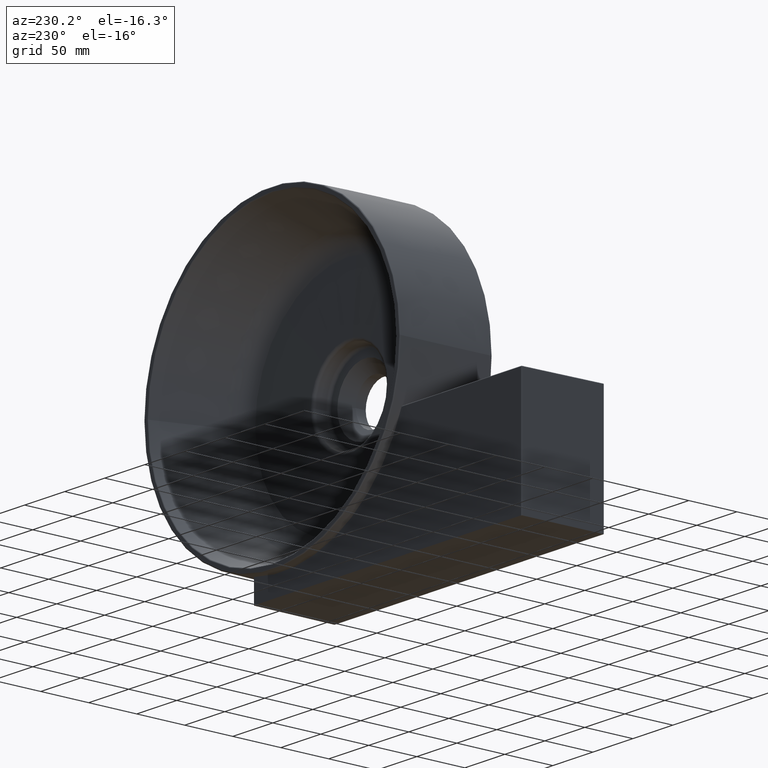
[diagram: clean part render]
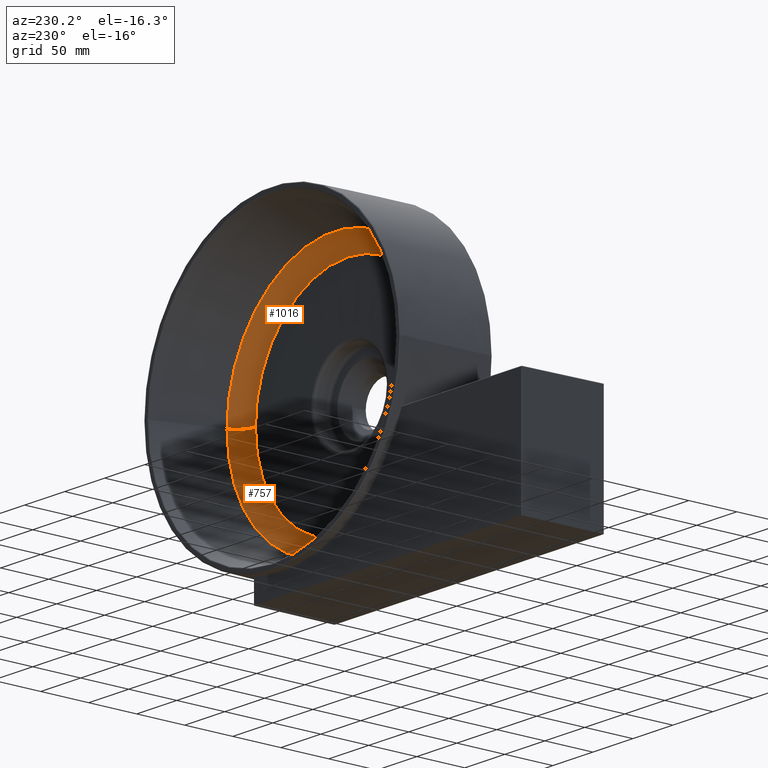
[diagram: same view with one multi-face feature highlighted, each face labeled with its STEP entity id]
A machine part, auxiliary view. The highlighted faces form ONE feature: a constant-radius fillet chain: 2 tangent blend faces with common blend radius 20 mm. The faces share edges in the B-rep.
Their STEP definitions:
[1] entity #1016 (Torus):
#46 = EDGE_CURVE ( 'NONE', #1311, #457, #879, .T. ) ;
#113 = DIRECTION ( 'NONE',  ( -1.214623636765614367E-16, -1.000000000000000000, -0.0000000000000000000 ) ) ;
#119 = DIRECTION ( 'NONE',  ( 1.000000000000000000, -1.032313178795999663E-16, 0.0000000000000000000 ) ) ;
#132 = AXIS2_PLACEMENT_3D ( 'NONE', #368, #2406, #119 ) ;
#225 = DIRECTION ( 'NONE',  ( -0.0000000000000000000, 0.0000000000000000000, 1.000000000000000000 ) ) ;
#339 = DIRECTION ( 'NONE',  ( -1.000000000000000000, 0.0000000000000000000, -1.224646799147352961E-16 ) ) ;
#368 = CARTESIAN_POINT ( 'NONE',  ( 140.8447018501478851, 51.59946533649621614, 0.0000000000000000000 ) ) ;
#457 = VERTEX_POINT ( 'NONE', #1357 ) ;
#536 = EDGE_CURVE ( 'NONE', #457, #3122, #3182, .T. ) ;
#609 = ORIENTED_EDGE ( 'NONE', *, *, #46, .T. ) ;
#879 = CIRCLE ( 'NONE', #2970, 115.7594727084466939 ) ;
#1016 = ADVANCED_FACE ( 'NONE', ( #2966 ), #3024, .F. ) ;
#1068 = CARTESIAN_POINT ( 'NONE',  ( 25.48514916569316568, 57.61358132658173048, -1.412747069460879032E-14 ) ) ;
#1096 = AXIS2_PLACEMENT_3D ( 'NONE', #1881, #3163, #3207 ) ;
#1299 = CARTESIAN_POINT ( 'NONE',  ( 256.6041745585945932, 37.61758012698155085, 0.0000000000000000000 ) ) ;
#1311 = VERTEX_POINT ( 'NONE', #1299 ) ;
#1357 = CARTESIAN_POINT ( 'NONE',  ( 25.08522914170119122, 37.61758012698157927, -1.531992514450001180E-14 ) ) ;
#1380 = ORIENTED_EDGE ( 'NONE', *, *, #1574, .F. ) ;
#1505 = AXIS2_PLACEMENT_3D ( 'NONE', #3037, #225, #2563 ) ;
#1510 = CIRCLE ( 'NONE', #132, 134.4338916994191777 ) ;
#1574 = EDGE_CURVE ( 'NONE', #1311, #3088, #2851, .T. ) ;
#1620 = DIRECTION ( 'NONE',  ( 1.224646799147353207E-16, -1.487484948933726914E-32, -1.000000000000000000 ) ) ;
#1649 = CARTESIAN_POINT ( 'NONE',  ( 275.2785935495670628, 51.59946533649620193, 0.0000000000000000000 ) ) ;
#1750 = ORIENTED_EDGE ( 'NONE', *, *, #536, .T. ) ;
#1788 = EDGE_LOOP ( 'NONE', ( #609, #1750, #3155, #1380 ) ) ;
#1881 = CARTESIAN_POINT ( 'NONE',  ( 140.8447018501478567, 57.61358132658171627, 0.0000000000000000000 ) ) ;
#1943 = AXIS2_PLACEMENT_3D ( 'NONE', #1068, #1620, #339 ) ;
#2122 = DIRECTION ( 'NONE',  ( 1.000000000000000000, -1.198846840186222324E-16, 0.0000000000000000000 ) ) ;
#2280 = EDGE_CURVE ( 'NONE', #3088, #3122, #1510, .T. ) ;
#2406 = DIRECTION ( 'NONE',  ( -1.214623636765614367E-16, -1.000000000000000000, -0.0000000000000000000 ) ) ;
#2563 = DIRECTION ( 'NONE',  ( 1.000000000000000000, 0.0000000000000000000, 0.0000000000000000000 ) ) ;
#2600 = CARTESIAN_POINT ( 'NONE',  ( 140.8447018501478851, 37.61758012698156506, 0.0000000000000000000 ) ) ;
#2708 = CARTESIAN_POINT ( 'NONE',  ( 6.410810150728668333, 51.59946533649623035, -1.770868383702169800E-14 ) ) ;
#2851 = CIRCLE ( 'NONE', #1505, 20.00000000000001776 ) ;
#2966 = FACE_OUTER_BOUND ( 'NONE', #1788, .T. ) ;
#2970 = AXIS2_PLACEMENT_3D ( 'NONE', #2600, #113, #2122 ) ;
#3024 = TOROIDAL_SURFACE ( 'NONE', #1096, 115.3595526844546981, 20.00000000000001066 ) ;
#3037 = CARTESIAN_POINT ( 'NONE',  ( 256.2042545346025690, 57.61358132658170206, 0.0000000000000000000 ) ) ;
#3088 = VERTEX_POINT ( 'NONE', #1649 ) ;
#3122 = VERTEX_POINT ( 'NONE', #2708 ) ;
#3155 = ORIENTED_EDGE ( 'NONE', *, *, #2280, .F. ) ;
#3163 = DIRECTION ( 'NONE',  ( 1.214623636765614367E-16, 1.000000000000000000, 0.0000000000000000000 ) ) ;
#3182 = CIRCLE ( 'NONE', #1943, 20.00000000000001066 ) ;
#3207 = DIRECTION ( 'NONE',  ( 1.000000000000000000, -1.214623636765614367E-16, 0.0000000000000000000 ) ) ;
[2] entity #757 (Torus):
#225 = DIRECTION ( 'NONE',  ( -0.0000000000000000000, 0.0000000000000000000, 1.000000000000000000 ) ) ;
#318 = DIRECTION ( 'NONE',  ( 1.000000000000000000, -1.032313178795999663E-16, 0.0000000000000000000 ) ) ;
#339 = DIRECTION ( 'NONE',  ( -1.000000000000000000, 0.0000000000000000000, -1.224646799147352961E-16 ) ) ;
#453 = EDGE_CURVE ( 'NONE', #457, #1311, #673, .T. ) ;
#457 = VERTEX_POINT ( 'NONE', #1357 ) ;
#536 = EDGE_CURVE ( 'NONE', #457, #3122, #3182, .T. ) ;
#625 = EDGE_LOOP ( 'NONE', ( #2184, #951, #1958, #2829 ) ) ;
#673 = CIRCLE ( 'NONE', #1252, 115.7594727084466939 ) ;
#757 = ADVANCED_FACE ( 'NONE', ( #2267 ), #1148, .F. ) ;
#826 = DIRECTION ( 'NONE',  ( 1.000000000000000000, -1.198846840186222324E-16, 0.0000000000000000000 ) ) ;
#845 = EDGE_CURVE ( 'NONE', #3122, #3088, #2922, .T. ) ;
#951 = ORIENTED_EDGE ( 'NONE', *, *, #453, .T. ) ;
#988 = AXIS2_PLACEMENT_3D ( 'NONE', #1747, #3134, #318 ) ;
#1068 = CARTESIAN_POINT ( 'NONE',  ( 25.48514916569316568, 57.61358132658173048, -1.412747069460879032E-14 ) ) ;
#1148 = TOROIDAL_SURFACE ( 'NONE', #2810, 115.3595526844546981, 20.00000000000001066 ) ;
#1252 = AXIS2_PLACEMENT_3D ( 'NONE', #2869, #2901, #826 ) ;
#1299 = CARTESIAN_POINT ( 'NONE',  ( 256.6041745585945932, 37.61758012698155085, 0.0000000000000000000 ) ) ;
#1311 = VERTEX_POINT ( 'NONE', #1299 ) ;
#1357 = CARTESIAN_POINT ( 'NONE',  ( 25.08522914170119122, 37.61758012698157927, -1.531992514450001180E-14 ) ) ;
#1505 = AXIS2_PLACEMENT_3D ( 'NONE', #3037, #225, #2563 ) ;
#1574 = EDGE_CURVE ( 'NONE', #1311, #3088, #2851, .T. ) ;
#1620 = DIRECTION ( 'NONE',  ( 1.224646799147353207E-16, -1.487484948933726914E-32, -1.000000000000000000 ) ) ;
#1649 = CARTESIAN_POINT ( 'NONE',  ( 275.2785935495670628, 51.59946533649620193, 0.0000000000000000000 ) ) ;
#1747 = CARTESIAN_POINT ( 'NONE',  ( 140.8447018501478851, 51.59946533649621614, 0.0000000000000000000 ) ) ;
#1943 = AXIS2_PLACEMENT_3D ( 'NONE', #1068, #1620, #339 ) ;
#1958 = ORIENTED_EDGE ( 'NONE', *, *, #1574, .T. ) ;
#2184 = ORIENTED_EDGE ( 'NONE', *, *, #536, .F. ) ;
#2246 = DIRECTION ( 'NONE',  ( 1.214623636765614367E-16, 1.000000000000000000, 0.0000000000000000000 ) ) ;
#2267 = FACE_OUTER_BOUND ( 'NONE', #625, .T. ) ;
#2563 = DIRECTION ( 'NONE',  ( 1.000000000000000000, 0.0000000000000000000, 0.0000000000000000000 ) ) ;
#2708 = CARTESIAN_POINT ( 'NONE',  ( 6.410810150728668333, 51.59946533649623035, -1.770868383702169800E-14 ) ) ;
#2775 = CARTESIAN_POINT ( 'NONE',  ( 140.8447018501478567, 57.61358132658171627, 0.0000000000000000000 ) ) ;
#2810 = AXIS2_PLACEMENT_3D ( 'NONE', #2775, #2246, #3272 ) ;
#2829 = ORIENTED_EDGE ( 'NONE', *, *, #845, .F. ) ;
#2851 = CIRCLE ( 'NONE', #1505, 20.00000000000001776 ) ;
#2869 = CARTESIAN_POINT ( 'NONE',  ( 140.8447018501478851, 37.61758012698156506, 0.0000000000000000000 ) ) ;
#2901 = DIRECTION ( 'NONE',  ( -1.214623636765614367E-16, -1.000000000000000000, -0.0000000000000000000 ) ) ;
#2922 = CIRCLE ( 'NONE', #988, 134.4338916994191777 ) ;
#3037 = CARTESIAN_POINT ( 'NONE',  ( 256.2042545346025690, 57.61358132658170206, 0.0000000000000000000 ) ) ;
#3088 = VERTEX_POINT ( 'NONE', #1649 ) ;
#3122 = VERTEX_POINT ( 'NONE', #2708 ) ;
#3134 = DIRECTION ( 'NONE',  ( -1.214623636765614367E-16, -1.000000000000000000, -0.0000000000000000000 ) ) ;
#3182 = CIRCLE ( 'NONE', #1943, 20.00000000000001066 ) ;
#3272 = DIRECTION ( 'NONE',  ( 1.000000000000000000, -1.214623636765614367E-16, 0.0000000000000000000 ) ) ;